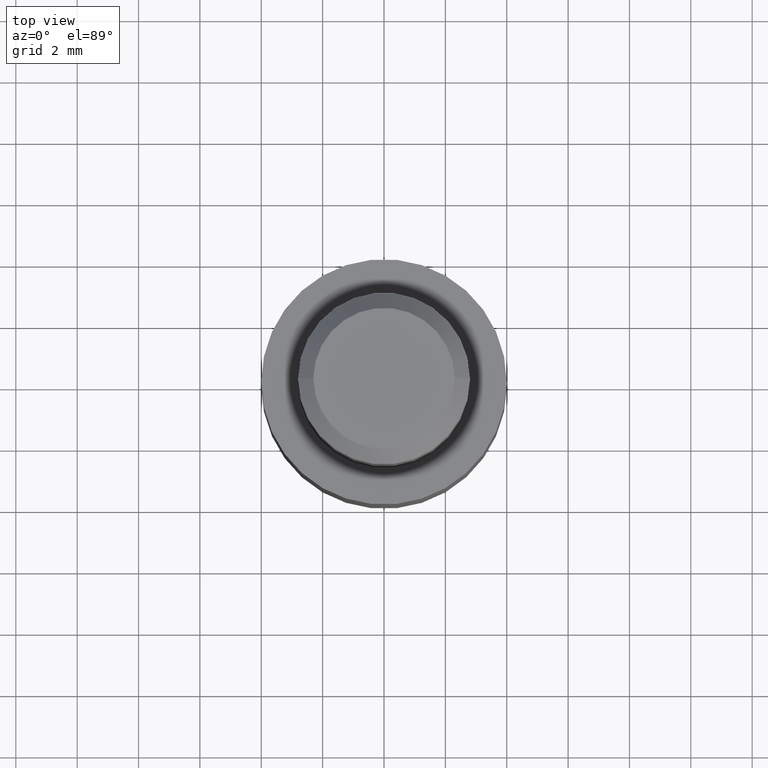
[diagram: clean part render]
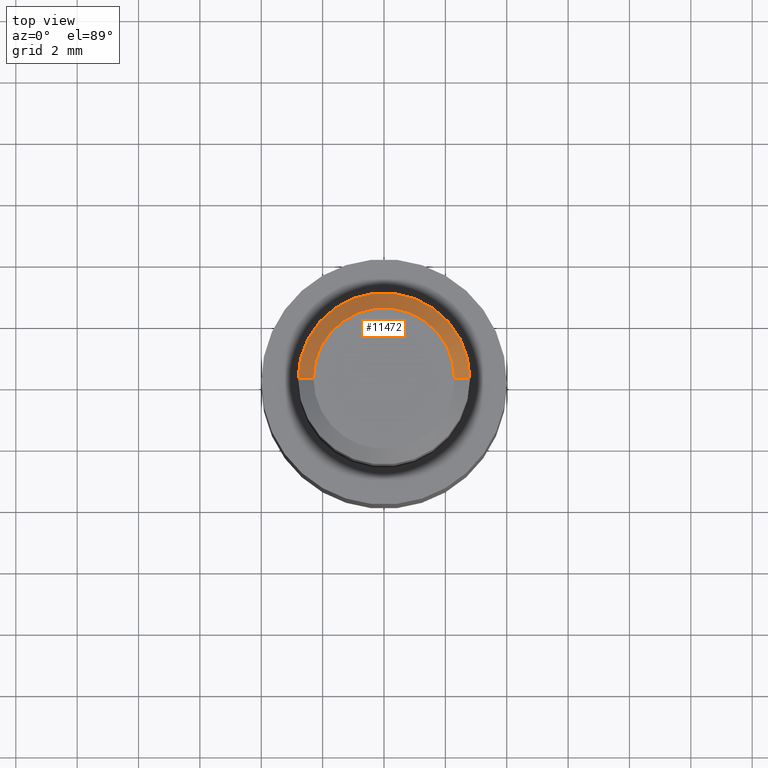
[diagram: same view with one face highlighted and labeled with its STEP entity id]
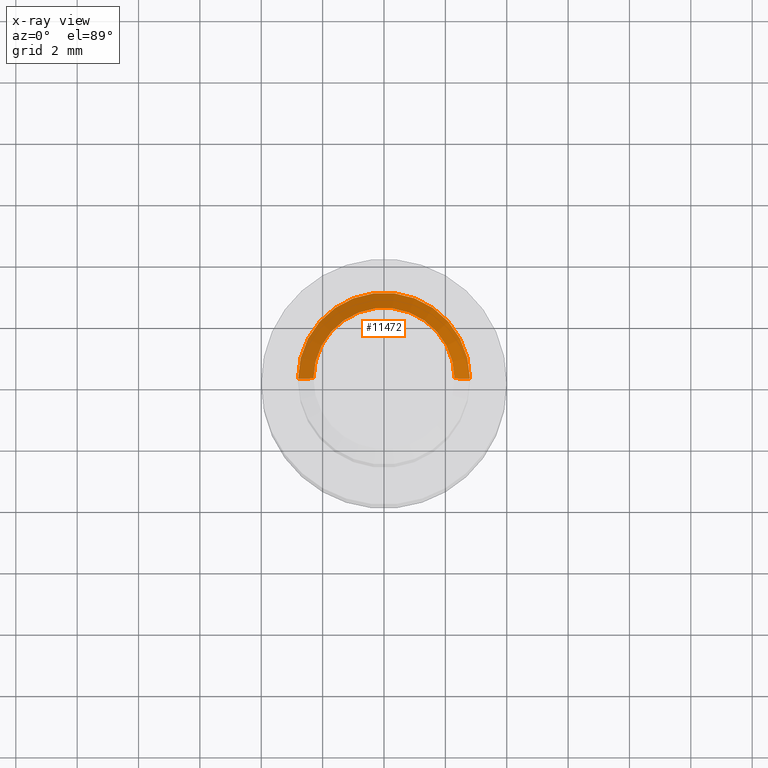
[diagram: x-ray of the same camera — body ghosted, the highlighted face saturated]
A machine part, top view. The second image highlights one B-rep face of the part: STEP entity #11472.
The next image is the same camera in x-ray: the body ghosted, the highlighted face saturated — about 0% of this face is hidden behind the body in this view.
In plain terms, the highlighted conical surface has half-angle 45 deg.
Its self-contained STEP definition (entity closure, byte-faithful):
#397 = CONICAL_SURFACE ( 'NONE', #10270, 2.300000000000010000, 0.7853981633974447300 ) ;
#1408 = ORIENTED_EDGE ( 'NONE', *, *, #10346, .F. ) ;
#1450 = AXIS2_PLACEMENT_3D ( 'NONE', #5507, #3655, #5398 ) ;
#1520 = CARTESIAN_POINT ( 'NONE',  ( 2.300000000000010000, 3.122849337825756800E-016, 21.00000000000000000 ) ) ;
#1523 = ORIENTED_EDGE ( 'NONE', *, *, #7845, .T. ) ;
#1617 = FACE_OUTER_BOUND ( 'NONE', #7375, .T. ) ;
#1904 = DIRECTION ( 'NONE',  ( 0.7071067811865451300, 8.659560562354904500E-017, -0.7071067811865500200 ) ) ;
#3622 = VERTEX_POINT ( 'NONE', #10341 ) ;
#3655 = DIRECTION ( 'NONE',  ( 0.0000000000000000000, 0.0000000000000000000, -1.000000000000000000 ) ) ;
#3730 = CARTESIAN_POINT ( 'NONE',  ( -2.300000000000010000, 0.0000000000000000000, 21.00000000000000000 ) ) ;
#4058 = EDGE_CURVE ( 'NONE', #3622, #4612, #10360, .T. ) ;
#4155 = CARTESIAN_POINT ( 'NONE',  ( 0.0000000000000000000, 0.0000000000000000000, 21.00000000000000000 ) ) ;
#4311 = AXIS2_PLACEMENT_3D ( 'NONE', #9709, #5163, #6840 ) ;
#4612 = VERTEX_POINT ( 'NONE', #10709 ) ;
#4806 = EDGE_CURVE ( 'NONE', #5919, #3622, #11099, .T. ) ;
#5163 = DIRECTION ( 'NONE',  ( 0.0000000000000000000, 0.0000000000000000000, 1.000000000000000000 ) ) ;
#5398 = DIRECTION ( 'NONE',  ( 1.000000000000000000, 0.0000000000000000000, 0.0000000000000000000 ) ) ;
#5507 = CARTESIAN_POINT ( 'NONE',  ( 0.0000000000000000000, 0.0000000000000000000, 20.50000000000000700 ) ) ;
#5919 = VERTEX_POINT ( 'NONE', #7020 ) ;
#6345 = DIRECTION ( 'NONE',  ( -0.7071067811865451300, 0.0000000000000000000, -0.7071067811865500200 ) ) ;
#6505 = CARTESIAN_POINT ( 'NONE',  ( 2.300000000000010000, 2.816687638038924900E-016, 21.00000000000000000 ) ) ;
#6748 = DIRECTION ( 'NONE',  ( 0.0000000000000000000, 0.0000000000000000000, -1.000000000000000000 ) ) ;
#6840 = DIRECTION ( 'NONE',  ( 1.000000000000000000, 0.0000000000000000000, 0.0000000000000000000 ) ) ;
#7020 = CARTESIAN_POINT ( 'NONE',  ( -2.300000000000010000, 0.0000000000000000000, 21.00000000000000000 ) ) ;
#7375 = EDGE_LOOP ( 'NONE', ( #1408, #1523, #10422, #9190 ) ) ;
#7845 = EDGE_CURVE ( 'NONE', #9448, #4612, #10453, .T. ) ;
#7965 = CIRCLE ( 'NONE', #4311, 2.300000000000010000 ) ;
#8002 = VECTOR ( 'NONE', #1904, 1000.000000000000100 ) ;
#9190 = ORIENTED_EDGE ( 'NONE', *, *, #4806, .F. ) ;
#9448 = VERTEX_POINT ( 'NONE', #1520 ) ;
#9656 = DIRECTION ( 'NONE',  ( -1.000000000000000000, 0.0000000000000000000, 0.0000000000000000000 ) ) ;
#9709 = CARTESIAN_POINT ( 'NONE',  ( 0.0000000000000000000, 0.0000000000000000000, 21.00000000000000000 ) ) ;
#9846 = VECTOR ( 'NONE', #6345, 1000.000000000000100 ) ;
#10270 = AXIS2_PLACEMENT_3D ( 'NONE', #4155, #6748, #9656 ) ;
#10341 = CARTESIAN_POINT ( 'NONE',  ( -2.799999999999999800, 0.0000000000000000000, 20.50000000000000700 ) ) ;
#10346 = EDGE_CURVE ( 'NONE', #9448, #5919, #7965, .T. ) ;
#10360 = CIRCLE ( 'NONE', #1450, 2.799999999999999800 ) ;
#10422 = ORIENTED_EDGE ( 'NONE', *, *, #4058, .F. ) ;
#10453 = LINE ( 'NONE', #6505, #8002 ) ;
#10709 = CARTESIAN_POINT ( 'NONE',  ( 2.799999999999999800, 3.429011037612588300E-016, 20.50000000000000700 ) ) ;
#11099 = LINE ( 'NONE', #3730, #9846 ) ;
#11472 = ADVANCED_FACE ( 'NONE', ( #1617 ), #397, .T. ) ;